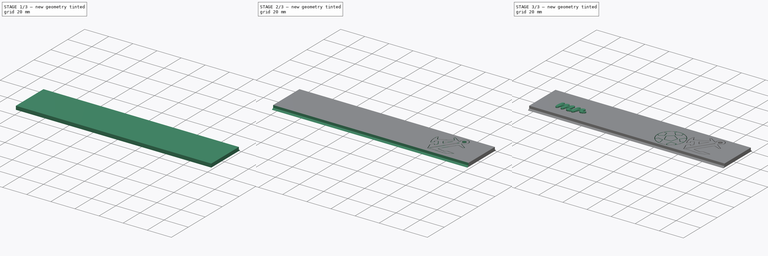
[diagram: build sequence overview — one tinted view per stage of 3, left to right]
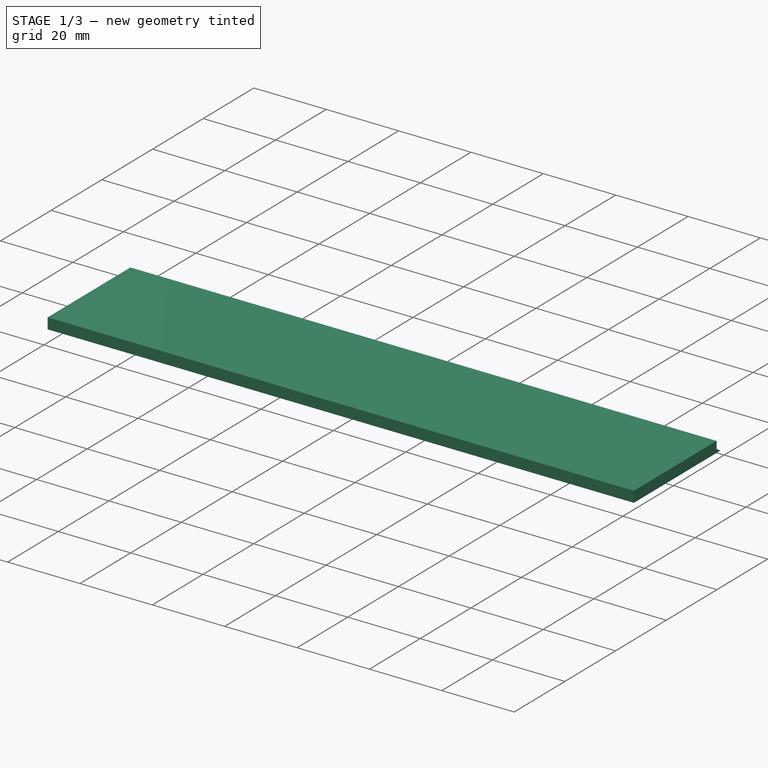
[diagram: stage 1 of 3 — iso view after this stage's code; geometry added in this stage tinted green]
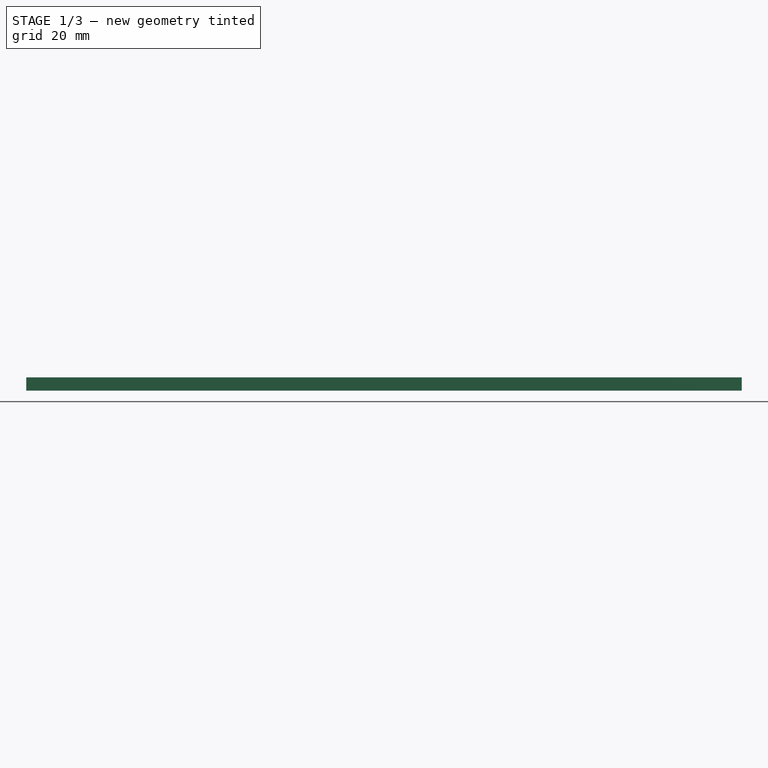
[diagram: stage 1 of 3 — front view after this stage's code; geometry added in this stage tinted green]
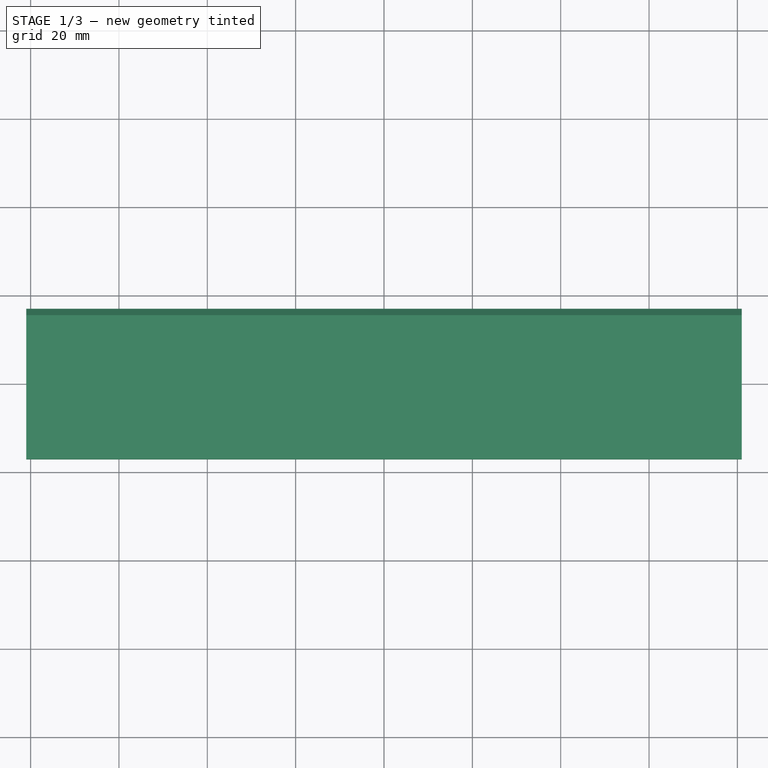
[diagram: stage 1 of 3 — top view after this stage's code; geometry added in this stage tinted green]
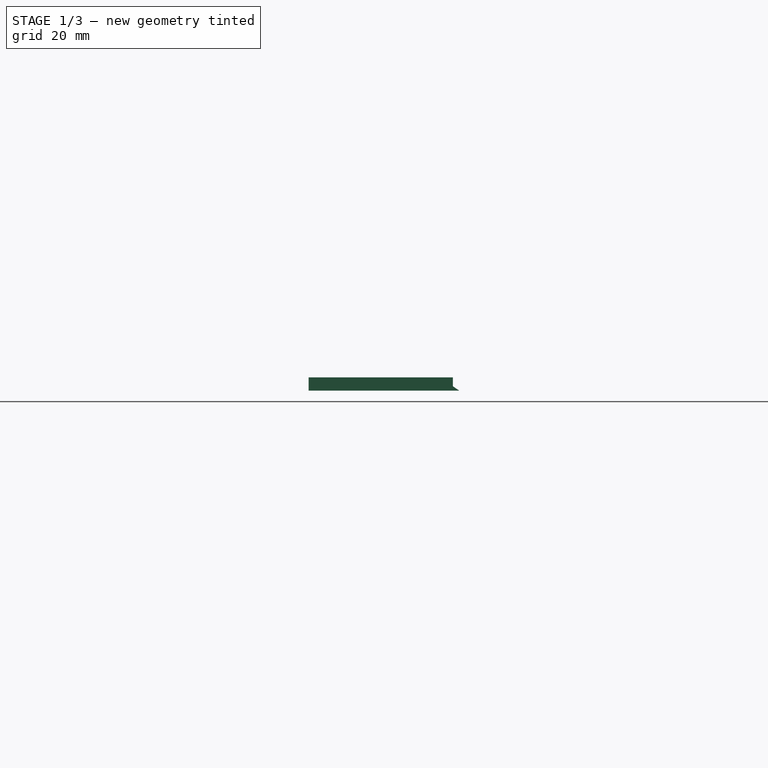
[diagram: stage 1 of 3 — right view after this stage's code; geometry added in this stage tinted green]
FCSTD DOCUMENT  (FreeCAD 0.20R29603 (Git))
Label: MR_Slant_Broad_Strip
License: All rights reserved
LicenseURL: http://en.wikipedia.org/wiki/All_rights_reserved
objects: PartDesign::Pocket×5, Sketcher::SketchObject×4, Part::FeaturePython×2, PartDesign::ShapeBinder×2, PartDesign::Pad×1, Part::Part2DObjectPython×1, Part::Extrusion×1, PartDesign::Body×1, App::Part×1
note: 23 computed .brp shape members not serialized (recipe doc carries the construction recipe); baked Part::Feature solids carry a one-line shape summary decoded from their .brp

FEATURE [Sketcher::SketchObject] Sketch  label="Strip001"
  FullyConstrained = true
  MapMode = 5
  Support = -> [XY_Plane001]
  sketch-geometry (5):
    g0: LineSegment StartX=-81 StartY=17.06 StartZ=0 EndX=-81 EndY=-17.06 EndZ=0
    g1: LineSegment StartX=-81 StartY=-17.06 StartZ=0 EndX=81 EndY=-17.06 EndZ=0
    g2: LineSegment StartX=81 StartY=-17.06 StartZ=0 EndX=81 EndY=17.06 EndZ=0
    g3: LineSegment StartX=81 StartY=17.06 StartZ=0 EndX=-81 EndY=17.06 EndZ=0
    g4: GeomPoint X=0 Y=0 Z=0
  constraints (12):
    c: Coincident(g0,g1)
    c: Coincident(g1,g2)
    c: Coincident(g2,g3)
    c: Coincident(g3,g0)
    c: Horizontal(g1)
    c: Horizontal(g3)
    c: Vertical(g0)
    c: Vertical(g2)
    c: Symmetric(g1,g0,g4)
    c: Coincident(g4,g-1)
    c: DistanceX(g3,g3) = 162
    c: DistanceY(g2,g2) = 34.12
FEATURE [PartDesign::Pad] Pad  label="Pad Strip"
  Direction = (0,0,1)
  Length = 3
  Length2 = 10
  Profile = -> Sketch
  ReferenceAxis = -> Sketch [N_Axis]
  Type = 0
FEATURE [Sketcher::SketchObject] Sketch001
  ExternalGeometry = -> [Pad]
  FullyConstrained = true
  MapMode = 5
  Placement = pos=(0,0,0) rot=(0.57735,0.57735,0.57735;2.0944rad)
  Support = -> [YZ_Plane001]
  expr: Constraints[3] = (34.12 - 31.16) / 2
  sketch-geometry (5):
    g0: LineSegment StartX=-15.58 StartY=3 StartZ=0 EndX=15.58 EndY=3 EndZ=0
    g1: LineSegment StartX=15.58 StartY=3 StartZ=0 EndX=17.06 EndY=3 EndZ=0
    g2: LineSegment StartX=17.06 StartY=3 StartZ=0 EndX=17.06 EndY=0 EndZ=0
    g3: LineSegment StartX=15.58 StartY=1 StartZ=0 EndX=15.58 EndY=3 EndZ=0
    g4: LineSegment StartX=15.58 StartY=1 StartZ=0 EndX=17.06 EndY=0 EndZ=0
  constraints (15):
    c: Horizontal(g0)
    c: DistanceX(g0,g0) = 31.16
    c: DistanceX(g-3,g-4) = 34.12
    c: DistanceX(g0,g-4) = 1.48
    c: Horizontal(g0,g-4)
    c: Coincident(g1,g2)
    c: Coincident(g3,g1)
    c: Horizontal(g1)
    c: Vertical(g2)
    c: Vertical(g3)
    c: Coincident(g1,g0)
    c: Coincident(g2,g-5)
    c: Coincident(g4,g3)
    c: Coincident(g4,g2)
    c: DistanceY(g3,g3) = 2
FEATURE [PartDesign::Pocket] Pocket
  BaseFeature = -> Pad
  Direction = (-1,2e-16,-3e-16)
  Length = 5
  Length2 = 5
  Midplane = true
  Profile = -> Sketch001
  ReferenceAxis = -> Sketch001 [N_Axis]
  Type = 1
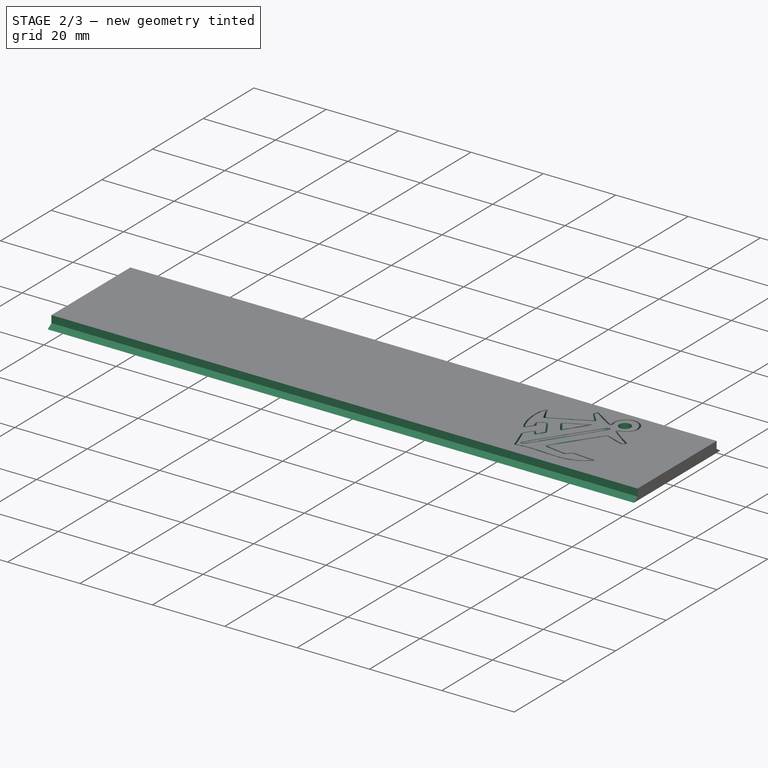
[diagram: stage 2 of 3 — iso view after this stage's code; geometry added in this stage tinted green]
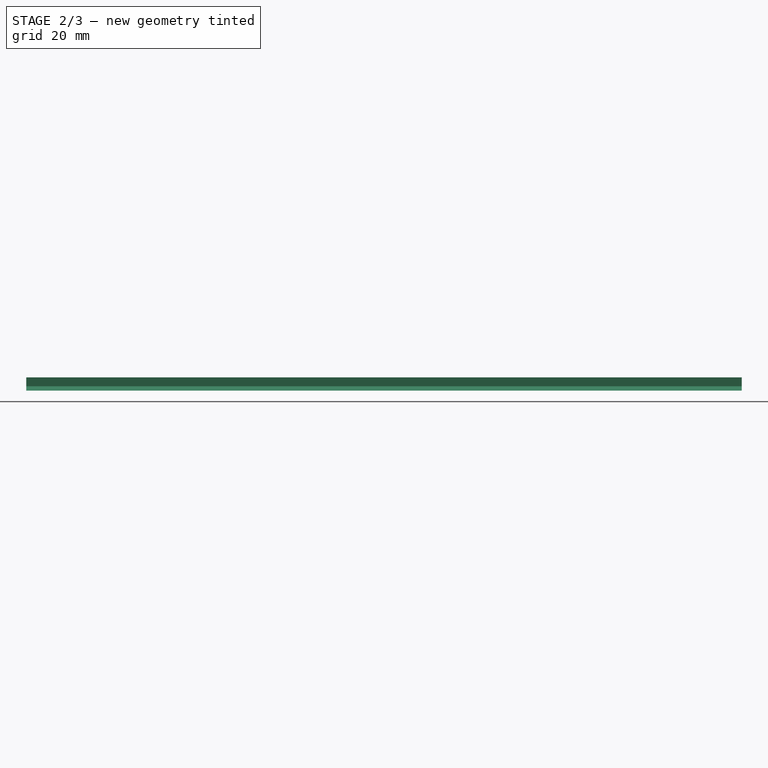
[diagram: stage 2 of 3 — front view after this stage's code; geometry added in this stage tinted green]
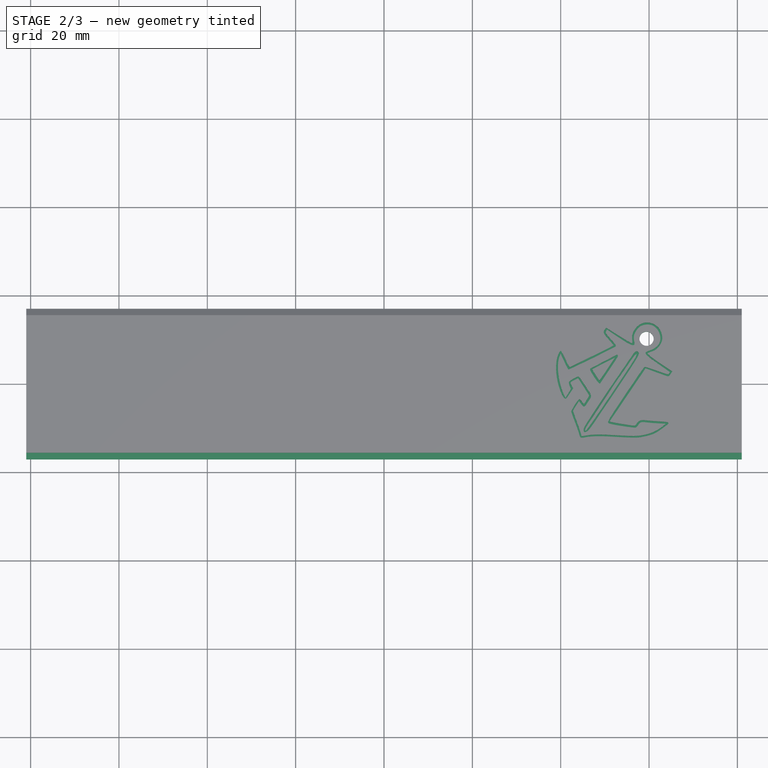
[diagram: stage 2 of 3 — top view after this stage's code; geometry added in this stage tinted green]
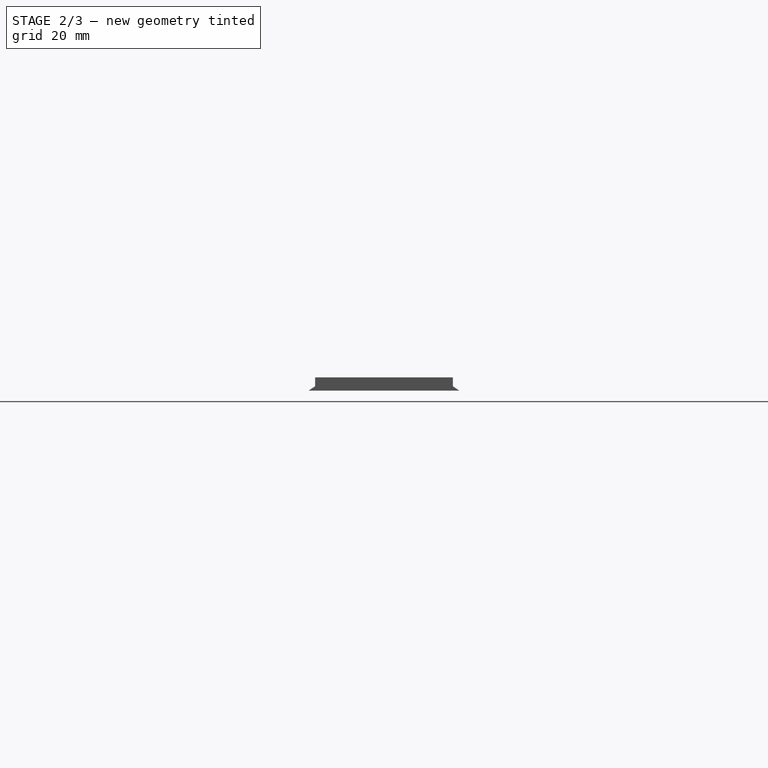
[diagram: stage 2 of 3 — right view after this stage's code; geometry added in this stage tinted green]
FEATURE [Sketcher::SketchObject] MirroredSketch
  FullyConstrained = false
  Placement = pos=(0,0,0) rot=(0.57735,0.57735,0.57735;2.0944rad)
  sketch-geometry (5):
    g0: LineSegment StartX=15.58 StartY=3 StartZ=0 EndX=-15.58 EndY=3 EndZ=0
    g1: LineSegment StartX=-15.58 StartY=3 StartZ=0 EndX=-17.06 EndY=3 EndZ=0
    g2: LineSegment StartX=-17.06 StartY=3 StartZ=0 EndX=-17.06 EndY=0 EndZ=0
    g3: LineSegment StartX=-15.58 StartY=1 StartZ=0 EndX=-15.58 EndY=3 EndZ=0
    g4: LineSegment StartX=-15.58 StartY=1 StartZ=0 EndX=-17.06 EndY=0 EndZ=0
  constraints (9):
    c: Horizontal(g0)
    c: Coincident(g1,g2)
    c: Coincident(g3,g1)
    c: Horizontal(g1)
    c: Vertical(g2)
    c: Vertical(g3)
    c: Coincident(g1,g0)
    c: Coincident(g4,g3)
    c: Coincident(g4,g2)
FEATURE [PartDesign::Pocket] Pocket001
  BaseFeature = -> Pocket
  Direction = (-1,0,0)
  Length = 5
  Length2 = 5
  Midplane = true
  Profile = -> MirroredSketch
  ReferenceAxis = -> MirroredSketch [N_Axis]
  Type = 1
FEATURE [Part::FeaturePython] Clone001  label="Anchor"  # WARN: FeaturePython — macro-defined, semantics opaque (R4)
  AttacherType = Attacher::AttachEngine3D
  Fuse = false
  Placement = pos=(83,1.43,3) rot=(0,0,1;5.69396rad)
  Scale = (1.5,1.5,1.5)
FEATURE [PartDesign::ShapeBinder] ShapeBinder  label="Anchor001"
  Placement = pos=(83,1.43,3) rot=(0,0,-1;0.589223rad)
  Support = -> [Clone001]
  TraceSupport = false
FEATURE [PartDesign::Pocket] Pocket002  label="Anchor002"
  BaseFeature = -> Pocket001
  Direction = (0,0,-1)
  Length = 2
  Length2 = 5
  Profile = -> ShapeBinder
  Type = 0
FEATURE [Sketcher::SketchObject] Sketch002
  AttachmentOffset = pos=(0,0,3) rot=(0,0,1;0rad)
  FullyConstrained = false
  MapMode = 5
  Placement = pos=(0,0,3) rot=(0,0,1;0rad)
  Support = -> [XY_Plane001]
  sketch-geometry (1):
    g0: Circle CenterX=59.438 CenterY=10.2273 CenterZ=0 NormalX=0 NormalY=0 NormalZ=1 AngleXU=0 Radius=1.60385
FEATURE [PartDesign::Pocket] Pocket003
  BaseFeature = -> Pocket002
  Direction = (0,0,-1)
  Length = 5
  Length2 = 5
  Profile = -> Sketch002
  ReferenceAxis = -> Sketch002 [N_Axis]
  Type = 0
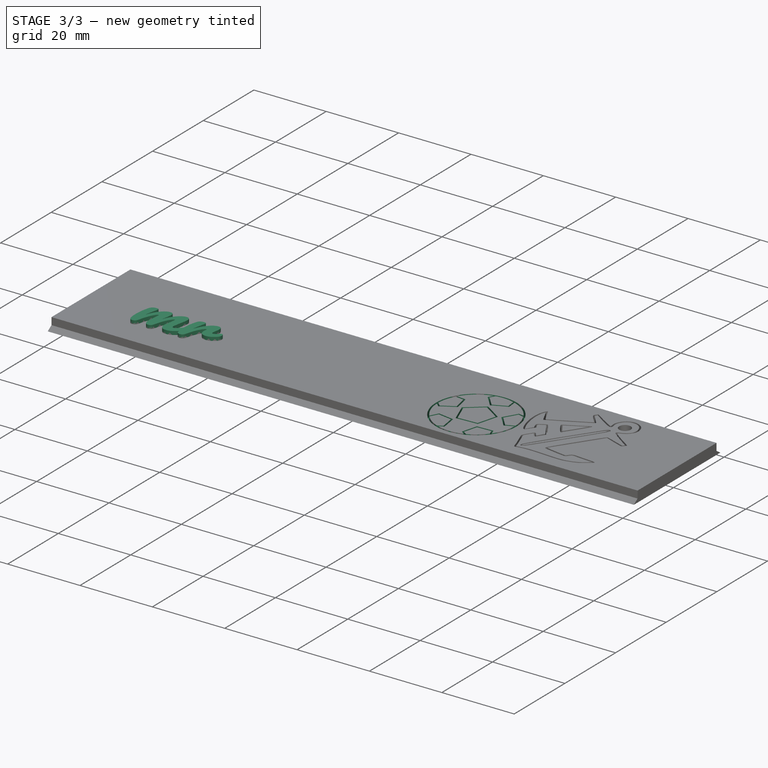
[diagram: stage 3 of 3 — iso view after this stage's code; geometry added in this stage tinted green]
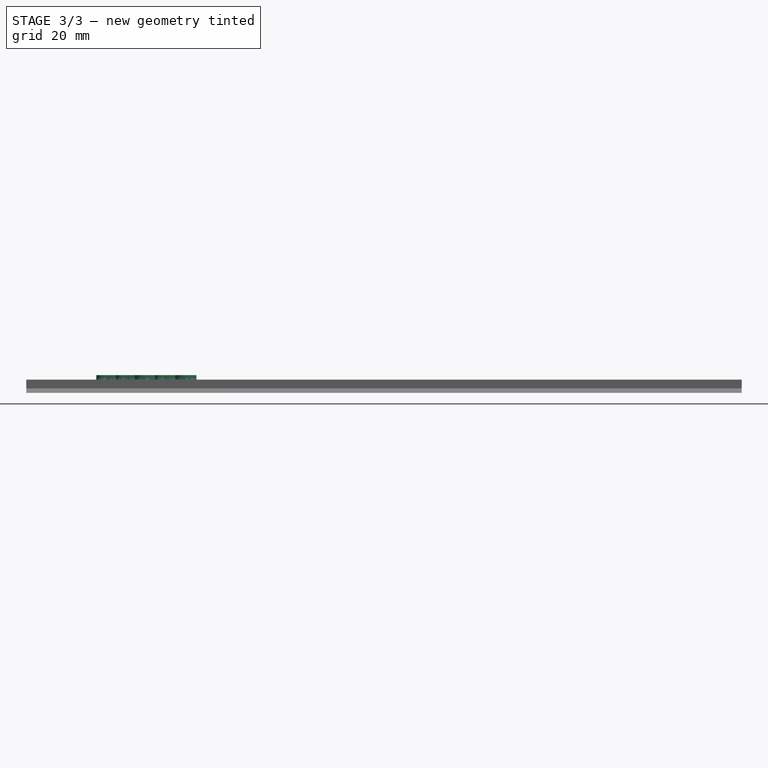
[diagram: stage 3 of 3 — front view after this stage's code; geometry added in this stage tinted green]
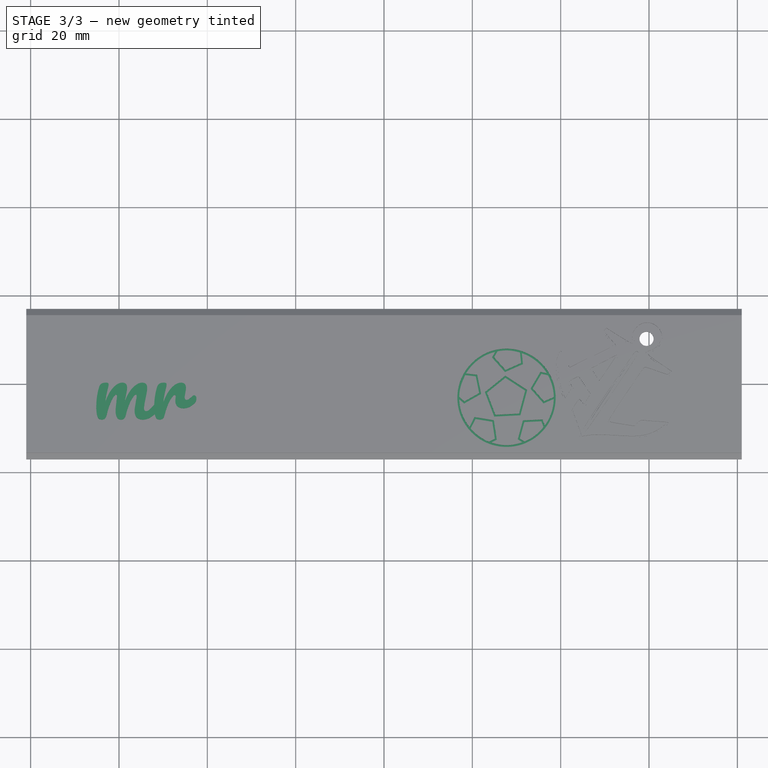
[diagram: stage 3 of 3 — top view after this stage's code; geometry added in this stage tinted green]
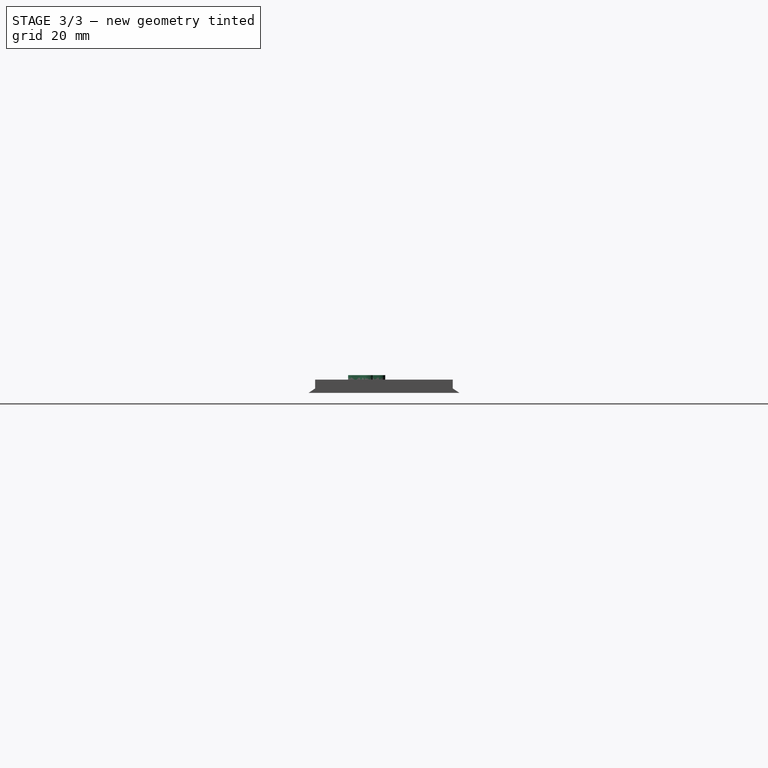
[diagram: stage 3 of 3 — right view after this stage's code; geometry added in this stage tinted green]
FEATURE [Part::Part2DObjectPython] ShapeString  # Draft 2D object (typed FeaturePython)
  FontFile = <userpath>/3D_Printing/Fonts/Pacifico/Pacifico-Regular.ttf
  MakeFace = true
  Placement = pos=(-66.02,-8.11,3) rot=(0,0,1;0rad)
  Size = 10
  String = mr
  Tracking = 0
FEATURE [Part::Extrusion] Extrude  label="mr"
  Base = -> ShapeString
  Dir = (0,0,1)
  DirMode = 2
  FaceMakerClass = Part::FaceMakerBullseye
  LengthFwd = 1
  LengthRev = 0
  Solid = false
  Symmetric = false
FEATURE [Part::FeaturePython] Clone  label="path835009"  # WARN: FeaturePython — macro-defined, semantics opaque (R4)
  AttacherType = Attacher::AttachEngine3D
  Fuse = false
  Placement = pos=(-4,40,3) rot=(0,0,1;0rad)
  Scale = (0.3,0.3,0.3)
FEATURE [PartDesign::ShapeBinder] ShapeBinder001
  Placement = pos=(-4,40,3) rot=(0,0,1;0rad)
  Support = -> [Clone]
  TraceSupport = false
FEATURE [PartDesign::Pocket] Pocket004
  BaseFeature = -> Pocket003
  Direction = (0,0,-1)
  Length = 2
  Length2 = 5
  Profile = -> ShapeBinder001
  Type = 0
FEATURE [PartDesign::Body] Body  label="Broad_Strip"
  Group = -> [Sketch,Pad,Sketch001,Pocket,MirroredSketch,Pocket001,ShapeBinder,Pocket002,Sketch002,Pocket003,ShapeBinder001,Pocket004]
  Origin = -> Origin001
  Tip = -> Pocket004
FEATURE [App::Part] Part  label="Strip"
  Group = -> [Body,ShapeString,Extrude,Clone001,Clone]
  Origin = -> Origin
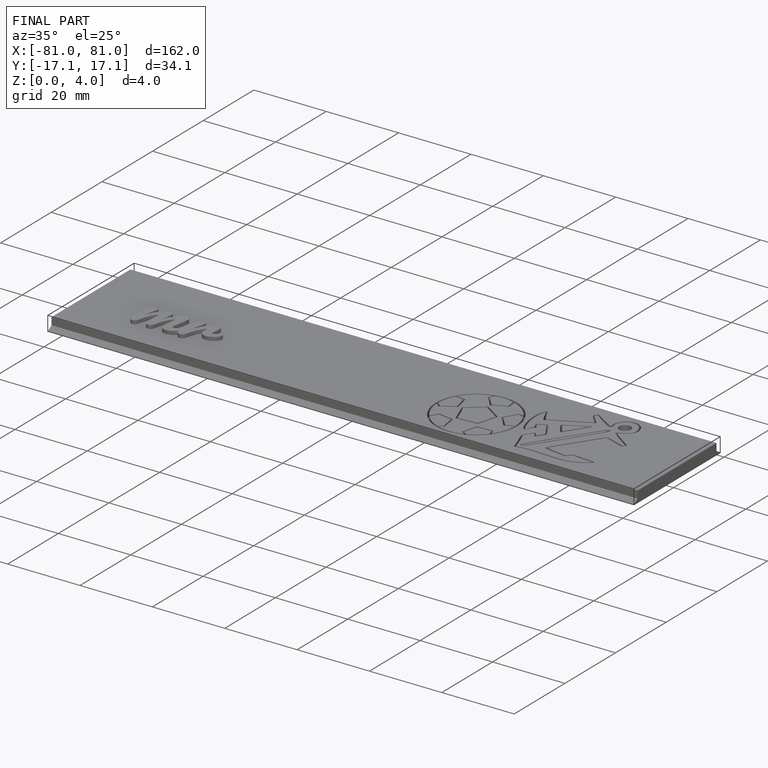
[diagram: finished part — iso view with bounding-box wireframe]
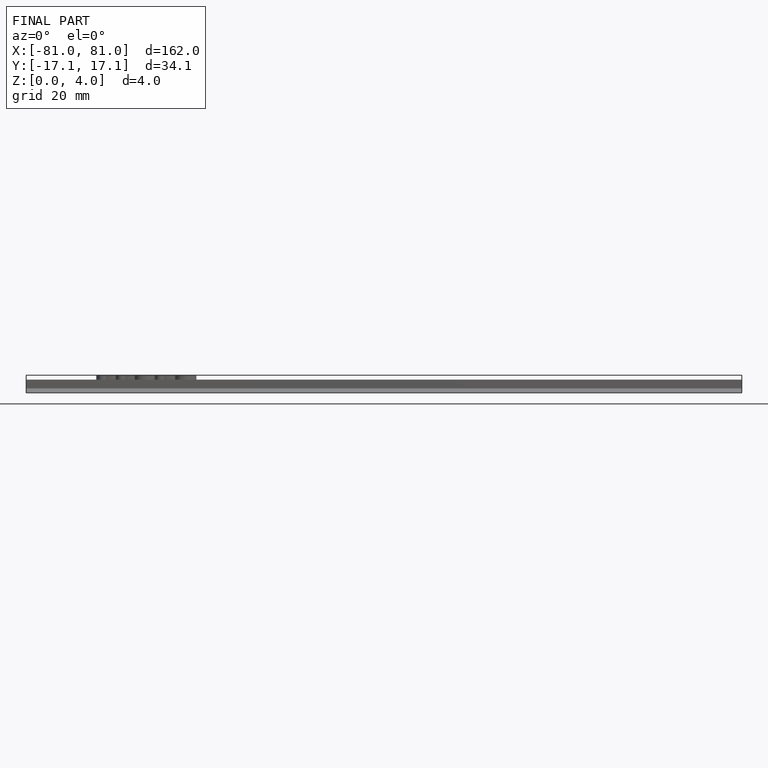
[diagram: finished part — front view with bounding-box wireframe]
